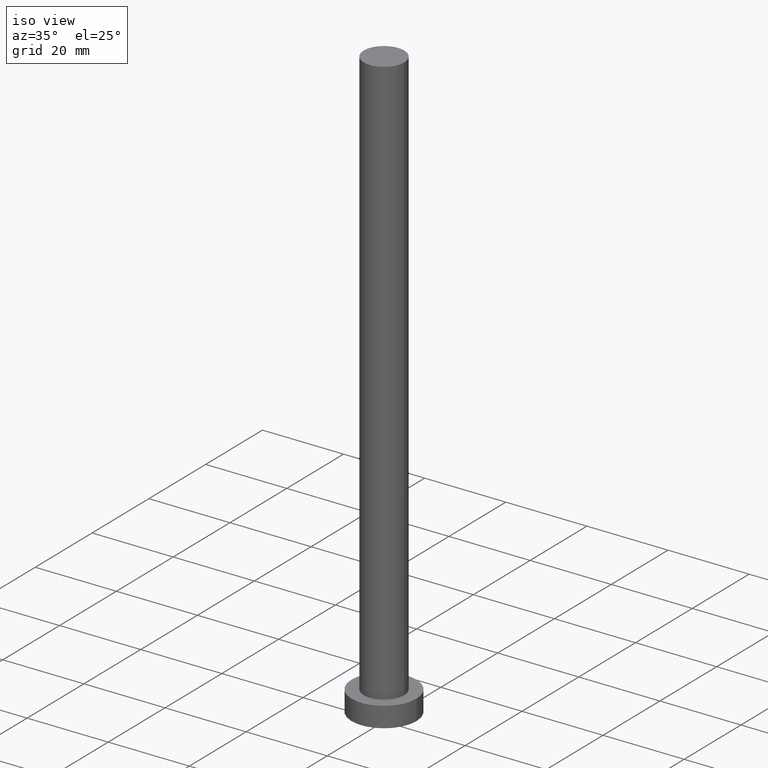
[diagram: clean part render]
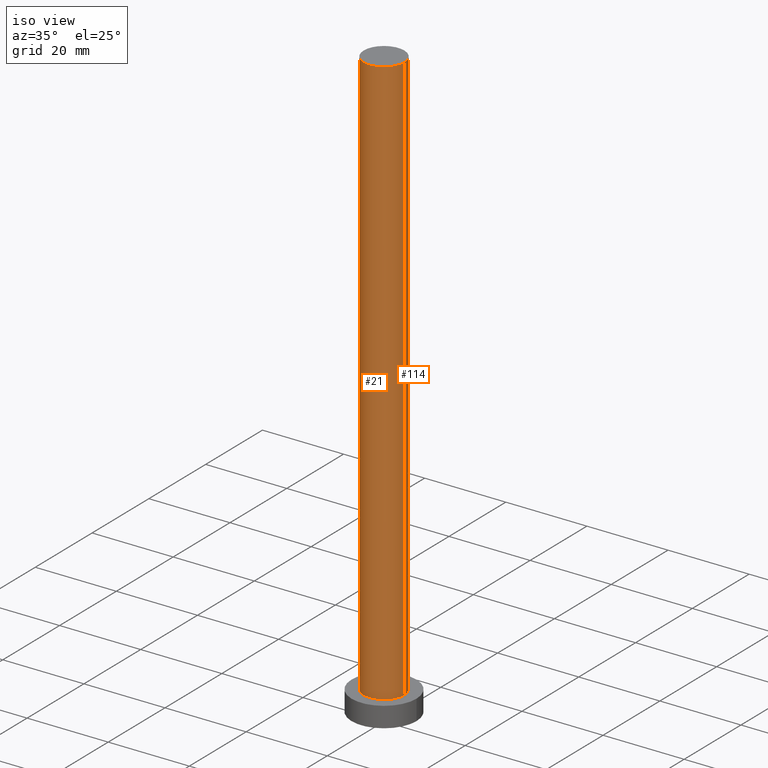
[diagram: same view with one multi-face feature highlighted, each face labeled with its STEP entity id]
A machine part, iso view. The highlighted faces form ONE feature: a constant-radius fillet chain: 2 tangent blend faces with common blend radius 5 mm. The faces share edges in the B-rep.
Their STEP definitions:
[1] entity #114 (Cylinder):
#6 = CARTESIAN_POINT ( 'NONE',  ( -5.000000000000000888, 0.000000000000000000, 146.0000000000000000 ) ) ;
#9 = ORIENTED_EDGE ( 'NONE', *, *, #132, .T. ) ;
#12 = LINE ( 'NONE', #230, #195 ) ;
#13 = DIRECTION ( 'NONE',  ( 0.000000000000000000, 0.000000000000000000, 1.000000000000000000 ) ) ;
#15 = DIRECTION ( 'NONE',  ( 1.000000000000000000, 0.000000000000000000, 0.000000000000000000 ) ) ;
#31 = DIRECTION ( 'NONE',  ( -0.000000000000000000, -0.000000000000000000, -1.000000000000000000 ) ) ;
#39 = AXIS2_PLACEMENT_3D ( 'NONE', #91, #248, #188 ) ;
#51 = DIRECTION ( 'NONE',  ( 0.000000000000000000, 0.000000000000000000, 1.000000000000000000 ) ) ;
#62 = ORIENTED_EDGE ( 'NONE', *, *, #160, .F. ) ;
#66 = VERTEX_POINT ( 'NONE', #206 ) ;
#82 = VERTEX_POINT ( 'NONE', #6 ) ;
#91 = CARTESIAN_POINT ( 'NONE',  ( 0.000000000000000000, 0.000000000000000000, 146.0000000000000000 ) ) ;
#92 = LINE ( 'NONE', #130, #137 ) ;
#95 = EDGE_LOOP ( 'NONE', ( #246, #102, #9, #62 ) ) ;
#102 = ORIENTED_EDGE ( 'NONE', *, *, #213, .T. ) ;
#108 = DIRECTION ( 'NONE',  ( -0.000000000000000000, -0.000000000000000000, -1.000000000000000000 ) ) ;
#112 = AXIS2_PLACEMENT_3D ( 'NONE', #165, #13, #191 ) ;
#114 = ADVANCED_FACE ( 'NONE', ( #203 ), #179, .T. ) ;
#118 = CIRCLE ( 'NONE', #189, 5.000000000000000888 ) ;
#125 = VERTEX_POINT ( 'NONE', #253 ) ;
#130 = CARTESIAN_POINT ( 'NONE',  ( 5.000000000000000888, 6.123233995736767268E-16, 146.0000000000000000 ) ) ;
#132 = EDGE_CURVE ( 'NONE', #66, #164, #118, .T. ) ;
#133 = CARTESIAN_POINT ( 'NONE',  ( -5.000000000000000888, 0.000000000000000000, 5.000000000000000000 ) ) ;
#137 = VECTOR ( 'NONE', #31, 1000.000000000000000 ) ;
#139 = EDGE_CURVE ( 'NONE', #125, #82, #224, .T. ) ;
#160 = EDGE_CURVE ( 'NONE', #82, #164, #12, .T. ) ;
#164 = VERTEX_POINT ( 'NONE', #133 ) ;
#165 = CARTESIAN_POINT ( 'NONE',  ( 0.000000000000000000, 0.000000000000000000, 146.0000000000000000 ) ) ;
#179 = CYLINDRICAL_SURFACE ( 'NONE', #39, 5.000000000000000888 ) ;
#188 = DIRECTION ( 'NONE',  ( -1.000000000000000000, 0.000000000000000000, 0.000000000000000000 ) ) ;
#189 = AXIS2_PLACEMENT_3D ( 'NONE', #228, #51, #15 ) ;
#191 = DIRECTION ( 'NONE',  ( 1.000000000000000000, 0.000000000000000000, 0.000000000000000000 ) ) ;
#195 = VECTOR ( 'NONE', #108, 1000.000000000000000 ) ;
#203 = FACE_OUTER_BOUND ( 'NONE', #95, .T. ) ;
#206 = CARTESIAN_POINT ( 'NONE',  ( 5.000000000000000888, 6.123233995736767268E-16, 5.000000000000000000 ) ) ;
#213 = EDGE_CURVE ( 'NONE', #125, #66, #92, .T. ) ;
#224 = CIRCLE ( 'NONE', #112, 5.000000000000000888 ) ;
#228 = CARTESIAN_POINT ( 'NONE',  ( 0.000000000000000000, 0.000000000000000000, 5.000000000000000000 ) ) ;
#230 = CARTESIAN_POINT ( 'NONE',  ( -5.000000000000000888, 0.000000000000000000, 146.0000000000000000 ) ) ;
#246 = ORIENTED_EDGE ( 'NONE', *, *, #139, .F. ) ;
#248 = DIRECTION ( 'NONE',  ( -0.000000000000000000, -0.000000000000000000, -1.000000000000000000 ) ) ;
#253 = CARTESIAN_POINT ( 'NONE',  ( 5.000000000000000888, 6.123233995736767268E-16, 146.0000000000000000 ) ) ;
[2] entity #21 (Cylinder):
#6 = CARTESIAN_POINT ( 'NONE',  ( -5.000000000000000888, 0.000000000000000000, 146.0000000000000000 ) ) ;
#7 = CYLINDRICAL_SURFACE ( 'NONE', #76, 5.000000000000000888 ) ;
#8 = ORIENTED_EDGE ( 'NONE', *, *, #160, .T. ) ;
#12 = LINE ( 'NONE', #230, #195 ) ;
#21 = ADVANCED_FACE ( 'NONE', ( #177 ), #7, .T. ) ;
#31 = DIRECTION ( 'NONE',  ( -0.000000000000000000, -0.000000000000000000, -1.000000000000000000 ) ) ;
#34 = DIRECTION ( 'NONE',  ( 0.000000000000000000, 0.000000000000000000, 1.000000000000000000 ) ) ;
#52 = AXIS2_PLACEMENT_3D ( 'NONE', #69, #34, #186 ) ;
#58 = CIRCLE ( 'NONE', #86, 5.000000000000000888 ) ;
#60 = DIRECTION ( 'NONE',  ( 1.000000000000000000, 0.000000000000000000, 0.000000000000000000 ) ) ;
#65 = EDGE_CURVE ( 'NONE', #164, #66, #58, .T. ) ;
#66 = VERTEX_POINT ( 'NONE', #206 ) ;
#69 = CARTESIAN_POINT ( 'NONE',  ( 0.000000000000000000, 0.000000000000000000, 146.0000000000000000 ) ) ;
#76 = AXIS2_PLACEMENT_3D ( 'NONE', #123, #176, #147 ) ;
#82 = VERTEX_POINT ( 'NONE', #6 ) ;
#86 = AXIS2_PLACEMENT_3D ( 'NONE', #241, #244, #60 ) ;
#92 = LINE ( 'NONE', #130, #137 ) ;
#108 = DIRECTION ( 'NONE',  ( -0.000000000000000000, -0.000000000000000000, -1.000000000000000000 ) ) ;
#119 = EDGE_CURVE ( 'NONE', #82, #125, #239, .T. ) ;
#123 = CARTESIAN_POINT ( 'NONE',  ( 0.000000000000000000, 0.000000000000000000, 146.0000000000000000 ) ) ;
#125 = VERTEX_POINT ( 'NONE', #253 ) ;
#130 = CARTESIAN_POINT ( 'NONE',  ( 5.000000000000000888, 6.123233995736767268E-16, 146.0000000000000000 ) ) ;
#133 = CARTESIAN_POINT ( 'NONE',  ( -5.000000000000000888, 0.000000000000000000, 5.000000000000000000 ) ) ;
#137 = VECTOR ( 'NONE', #31, 1000.000000000000000 ) ;
#140 = ORIENTED_EDGE ( 'NONE', *, *, #119, .F. ) ;
#147 = DIRECTION ( 'NONE',  ( -1.000000000000000000, 0.000000000000000000, 0.000000000000000000 ) ) ;
#160 = EDGE_CURVE ( 'NONE', #82, #164, #12, .T. ) ;
#163 = EDGE_LOOP ( 'NONE', ( #220, #140, #8, #242 ) ) ;
#164 = VERTEX_POINT ( 'NONE', #133 ) ;
#176 = DIRECTION ( 'NONE',  ( -0.000000000000000000, -0.000000000000000000, -1.000000000000000000 ) ) ;
#177 = FACE_OUTER_BOUND ( 'NONE', #163, .T. ) ;
#186 = DIRECTION ( 'NONE',  ( 1.000000000000000000, 0.000000000000000000, 0.000000000000000000 ) ) ;
#195 = VECTOR ( 'NONE', #108, 1000.000000000000000 ) ;
#206 = CARTESIAN_POINT ( 'NONE',  ( 5.000000000000000888, 6.123233995736767268E-16, 5.000000000000000000 ) ) ;
#213 = EDGE_CURVE ( 'NONE', #125, #66, #92, .T. ) ;
#220 = ORIENTED_EDGE ( 'NONE', *, *, #213, .F. ) ;
#230 = CARTESIAN_POINT ( 'NONE',  ( -5.000000000000000888, 0.000000000000000000, 146.0000000000000000 ) ) ;
#239 = CIRCLE ( 'NONE', #52, 5.000000000000000888 ) ;
#241 = CARTESIAN_POINT ( 'NONE',  ( 0.000000000000000000, 0.000000000000000000, 5.000000000000000000 ) ) ;
#242 = ORIENTED_EDGE ( 'NONE', *, *, #65, .T. ) ;
#244 = DIRECTION ( 'NONE',  ( 0.000000000000000000, 0.000000000000000000, 1.000000000000000000 ) ) ;
#253 = CARTESIAN_POINT ( 'NONE',  ( 5.000000000000000888, 6.123233995736767268E-16, 146.0000000000000000 ) ) ;